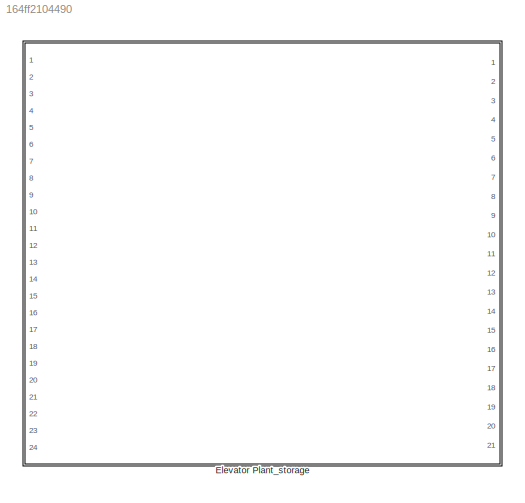
MODEL slx_164ff2104490
KIND model
CONFIG AbsTol = auto
CONFIG FixedStep = auto
CONFIG MaxStep = auto
CONFIG MinStep = auto
CONFIG RelTol = 1e-3
CONFIG SampleTimeConstraint = Unconstrained
CONFIG Solver = VariableStepAuto
CONFIG SolverMode = Auto
CONFIG SolverName = VariableStepAuto
CONFIG StartTime = 0.0
CONFIG StopTime = 10.0
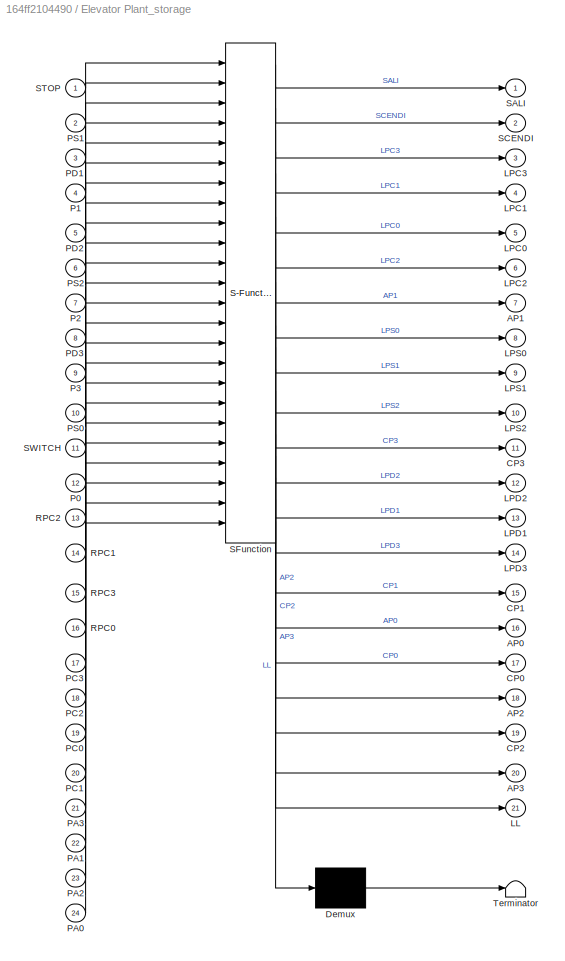
BLOCK [SubSystem] Elevator Plant_storage
  ErrorFcn = Stateflow.Translate.translate
  PermitHierarchicalResolution = ExplicitOnly
  Ports = [24, 21]
  RequestExecContextInheritance = off
  SFBlockType = Chart
  TreatAsAtomicUnit = on
  Variant = off
BLOCK [Demux] Elevator Plant_storage/ Demux 
  Outputs = 1
  Ports = [1, 1]
BLOCK [S-Function] Elevator Plant_storage/ SFunction 
  EnableBusSupport = on
  FunctionName = sf_sfun
  PortCounts = [24 22]
  Ports = [24, 22]
  SFunctionDeploymentMode = off
  Tag = Stateflow S-Function ElevatorPlant_Storage 3
BLOCK [Terminator] Elevator Plant_storage/ Terminator 
BLOCK [Outport] Elevator Plant_storage/AP0
  IconDisplay = Port number
  Port = 16
BLOCK [Outport] Elevator Plant_storage/AP1
  IconDisplay = Port number
  Port = 7
BLOCK [Outport] Elevator Plant_storage/AP2
  IconDisplay = Port number
  Port = 18
BLOCK [Outport] Elevator Plant_storage/AP3
  IconDisplay = Port number
  Port = 20
BLOCK [Outport] Elevator Plant_storage/CP0
  IconDisplay = Port number
  Port = 17
BLOCK [Outport] Elevator Plant_storage/CP1
  IconDisplay = Port number
  Port = 15
BLOCK [Outport] Elevator Plant_storage/CP2
  IconDisplay = Port number
  Port = 19
BLOCK [Outport] Elevator Plant_storage/CP3
  IconDisplay = Port number
  Port = 11
BLOCK [Outport] Elevator Plant_storage/LL
  IconDisplay = Port number
  Port = 21
BLOCK [Outport] Elevator Plant_storage/LPC0
  IconDisplay = Port number
  Port = 5
BLOCK [Outport] Elevator Plant_storage/LPC1
  IconDisplay = Port number
  Port = 4
BLOCK [Outport] Elevator Plant_storage/LPC2
  IconDisplay = Port number
  Port = 6
BLOCK [Outport] Elevator Plant_storage/LPC3
  IconDisplay = Port number
  Port = 3
BLOCK [Outport] Elevator Plant_storage/LPD1
  IconDisplay = Port number
  Port = 13
BLOCK [Outport] Elevator Plant_storage/LPD2
  IconDisplay = Port number
  Port = 12
BLOCK [Outport] Elevator Plant_storage/LPD3
  IconDisplay = Port number
  Port = 14
BLOCK [Outport] Elevator Plant_storage/LPS0
  IconDisplay = Port number
  Port = 8
BLOCK [Outport] Elevator Plant_storage/LPS1
  IconDisplay = Port number
  Port = 9
BLOCK [Outport] Elevator Plant_storage/LPS2
  IconDisplay = Port number
  Port = 10
BLOCK [Inport] Elevator Plant_storage/P0
  IconDisplay = Port number
  Port = 12
BLOCK [Inport] Elevator Plant_storage/P1
  IconDisplay = Port number
  Port = 4
BLOCK [Inport] Elevator Plant_storage/P2
  IconDisplay = Port number
  Port = 7
BLOCK [Inport] Elevator Plant_storage/P3
  IconDisplay = Port number
  Port = 9
BLOCK [Inport] Elevator Plant_storage/PA0
  IconDisplay = Port number
  Port = 24
BLOCK [Inport] Elevator Plant_storage/PA1
  IconDisplay = Port number
  Port = 22
BLOCK [Inport] Elevator Plant_storage/PA2
  IconDisplay = Port number
  Port = 23
BLOCK [Inport] Elevator Plant_storage/PA3
  IconDisplay = Port number
  Port = 21
BLOCK [Inport] Elevator Plant_storage/PC0
  IconDisplay = Port number
  Port = 19
BLOCK [Inport] Elevator Plant_storage/PC1
  IconDisplay = Port number
  Port = 20
BLOCK [Inport] Elevator Plant_storage/PC2
  IconDisplay = Port number
  Port = 18
BLOCK [Inport] Elevator Plant_storage/PC3
  IconDisplay = Port number
  Port = 17
BLOCK [Inport] Elevator Plant_storage/PD1
  IconDisplay = Port number
  Port = 3
BLOCK [Inport] Elevator Plant_storage/PD2
  IconDisplay = Port number
  Port = 5
BLOCK [Inport] Elevator Plant_storage/PD3
  IconDisplay = Port number
  Port = 8
BLOCK [Inport] Elevator Plant_storage/PS0
  IconDisplay = Port number
  Port = 10
BLOCK [Inport] Elevator Plant_storage/PS1
  IconDisplay = Port number
  Port = 2
BLOCK [Inport] Elevator Plant_storage/PS2
  IconDisplay = Port number
  Port = 6
BLOCK [Inport] Elevator Plant_storage/RPC0
  IconDisplay = Port number
  Port = 16
BLOCK [Inport] Elevator Plant_storage/RPC1
  IconDisplay = Port number
  Port = 14
BLOCK [Inport] Elevator Plant_storage/RPC2
  IconDisplay = Port number
  Port = 13
BLOCK [Inport] Elevator Plant_storage/RPC3
  IconDisplay = Port number
  Port = 15
BLOCK [Outport] Elevator Plant_storage/SALI
  IconDisplay = Port number
BLOCK [Outport] Elevator Plant_storage/SCENDI
  IconDisplay = Port number
  Port = 2
BLOCK [Inport] Elevator Plant_storage/STOP
  IconDisplay = Port number
BLOCK [Inport] Elevator Plant_storage/SWITCH
  IconDisplay = Port number
  Port = 11
CHART Elevator Plant_storage states=2078 transitions=9102
  STATE_LABEL 'Init_procedure\n\n'
  STATE_LABEL 'BLK_Init\n%BLK(LPS0)\n%BLK(LPD1)\n%BLK(LPS1)\n%BLK(LPD2)\n%BLK(LPS2)\n%BLK(LPD3)'
  STATE_LABEL 'Closing_all_doors'
  STATE_LABEL 'Closing0'
  STATE_LABEL 'Reset'
  STATE_LABEL 'Reset_0\nen:\nLPS0=false;\nBUTTON_CAR(1)=false;\nBUTTON_UP(1)=false;'
  STATE_LABEL 'Reset_1\nen:\nLPS1=false;\nLPD1=false;\nBUTTON_CAR(2)=false;\nBUTTON_UP(2)=false;\nBUTTON_DOWN(2)=false;'
  STATE_LABEL 'Reset_2\nen:\nLPS2=false;\nLPD2=false;\nBUTTON_CAR(3)=false;\nBUTTON_UP(3)=false;\nBUTTON_DOWN(3)=false;'
  STATE_LABEL 'Reset_3\nen:\nLPD3=false;\nBUTTON_CAR(4)=false;\nBUTTON_DOWN(4)=false;'
  STATE_LABEL '[FLOOR==0]'
  STATE_LABEL '[FLOOR==1]'
  STATE_LABEL '[FLOOR==2]'
  STATE_LABEL '[FLOOR==3]'
  STATE_LABEL 'Timer_close'
  STATE_LABEL 'Set_tmr\nen: Q_cl=true;'
  STATE_LABEL 'Set\nen:PT_cl=5;\nIN_cl=true;'
  STATE_LABEL 'Counting\nen:ET_cl = ET_cl + 1;\nQ_cl=false;'
  STATE_LABEL '[ET_cl==PT_cl]'
  STATE_LABEL '[ET_cl<PT_cl]'
  STATE_LABEL 'Closing\nen: CP0=Q_cl;\n'
  STATE_LABEL 'Button_detection\n'
  STATE_LABEL 'Save_energy\nen:\nLL=not(Q_LL);'
  STATE_LABEL 'Timer_LL'
  STATE_LABEL 'Set_tmr\nen:\nQ_LL=true;'
  STATE_LABEL 'Counting\nen:\nET_LL= ET_LL + 1;\nQ_LL=false;'
  STATE_LABEL 'Set\nen:\nIN_LL=true;\nPT_LL=10;'
  STATE_LABEL '[ET_LL==PT_LL]'
  STATE_LABEL '[ET_LL<PT_LL]'
  STATE_LABEL 'BUTTON_DOWN'
  STATE_LABEL 'Button_DOWN_1\nen:\nBUTTON_DOWN(2)=true;\nBUT_TEMP=1;\nLPD1=true;\nPUSHED=true;\nUPDATE=false;\nIN_LL=false; ET_LL=0;'
  STATE_LABEL 'First_but_1\nen:\nBUT_1=BUT_TEMP;\nFIRST_BUT=false;'
  STATE_LABEL 'Button_DOWN_2\nen:\nBUTTON_DOWN(3)=true;\nBUT_TEMP=2;\nLPD2=true;\nPUSHED=true;\nUPDATE=false;\nIN_LL=false; ET_LL=0;'
  STATE_LABEL 'First_but_2\nen:\nBUT_1=BUT_TEMP;\nFIRST_BUT=false;'
  STATE_LABEL 'Button_DOWN_3\nen:\nBUTTON_DOWN(4)=true;\nBUT_TEMP=3;\nLPD3=true;\nPUSHED=true;\nUPDATE=false;\nIN_LL=false; ET_LL=0;'
  STATE_LABEL 'First_but_3\nen:\nBUT_1=BUT_TEMP;\nFIRST_BUT=false;'
  STATE_LABEL '[PD1]'
  STATE_LABEL '[FIRST_BUT && not(RPC1)]'
  STATE_LABEL '[PD2]'
  STATE_LABEL '[FIRST_BUT && not(RPC2)]'
  STATE_LABEL '[PD3]'
